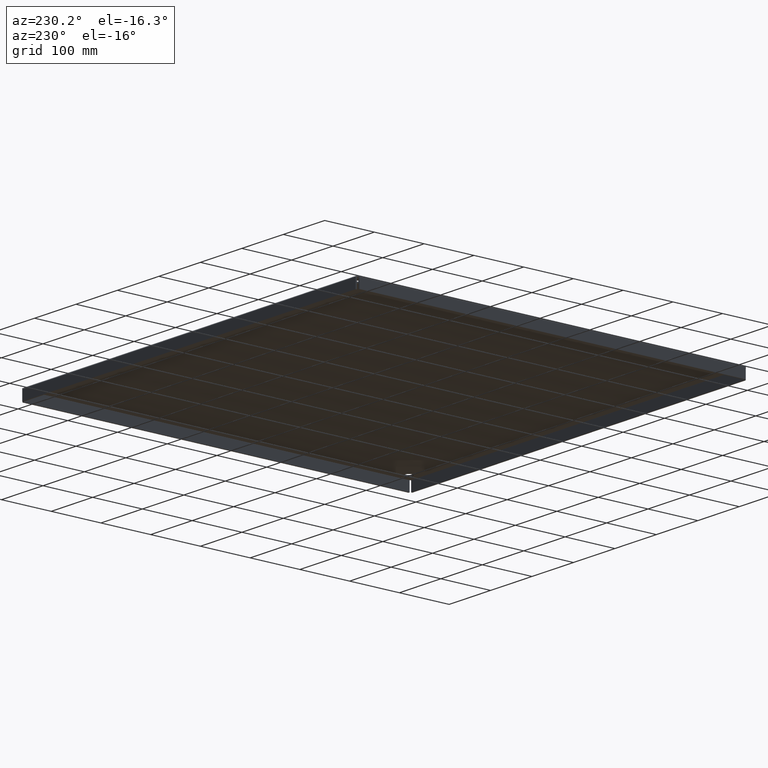
[diagram: clean part render]
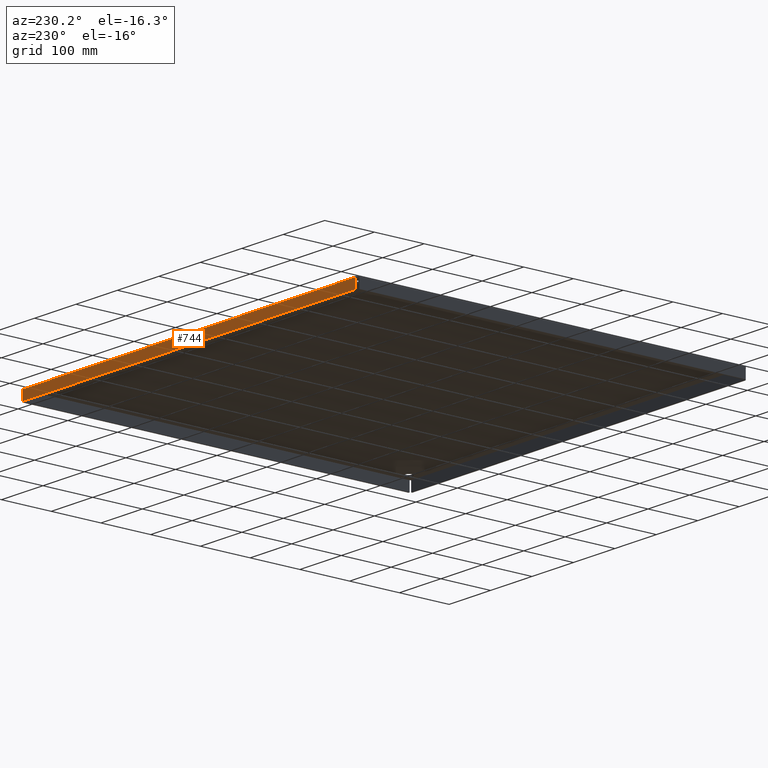
[diagram: same view with one face highlighted and labeled with its STEP entity id]
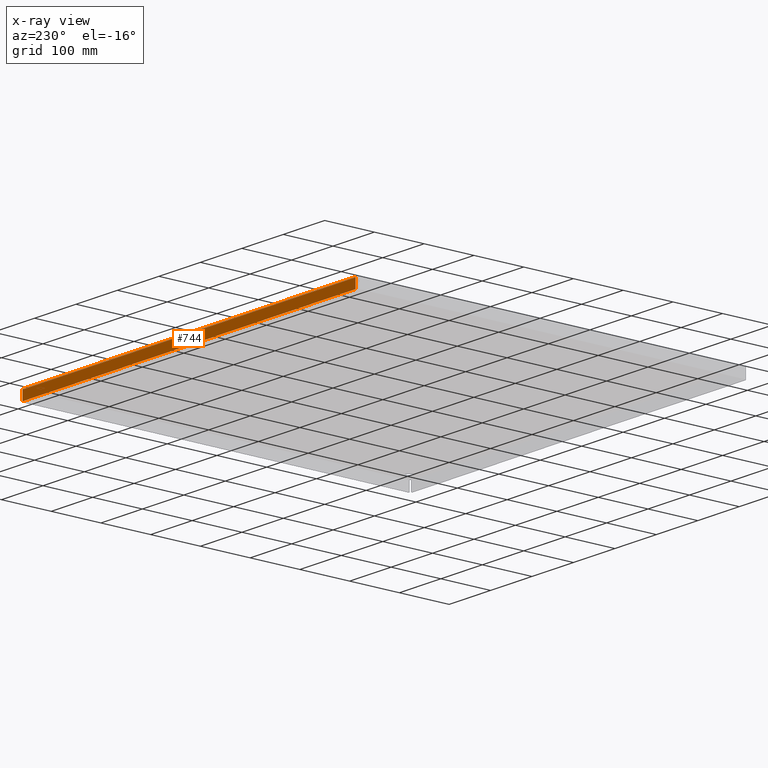
[diagram: x-ray of the same camera — body ghosted, the highlighted face saturated]
A machine part, auxiliary view. The second image highlights one B-rep face of the part: STEP entity #744.
The next image is the same camera in x-ray: the body ghosted, the highlighted face saturated — about 0% of this face is hidden behind the body in this view.
In plain terms, the highlighted planar face has unit normal (-0, 1, 0).
Its self-contained STEP definition (entity closure, byte-faithful):
#487=CARTESIAN_POINT('',(0.160041260736222,30.879999999999988,-0.015599999999985));
#488=VERTEX_POINT('',#487);
#489=CARTESIAN_POINT('',(31.839958739263768,30.880000000000017,-0.01559999999999));
#490=VERTEX_POINT('',#489);
#491=CARTESIAN_POINT('',(0.160041260736223,30.879999999999992,-0.015599999999979));
#492=DIRECTION('',(1.0,0.0,0.0));
#493=VECTOR('',#492,31.679917478527543);
#494=LINE('',#491,#493);
#495=EDGE_CURVE('',#488,#490,#494,.T.);
#573=CARTESIAN_POINT('',(31.839958739263757,30.880000000000152,-0.781249999999994));
#574=VERTEX_POINT('',#573);
#575=CARTESIAN_POINT('',(31.839958739263757,30.880000000000152,-0.781249999999994));
#576=DIRECTION('',(0.0,-1.763248E-013,1.0));
#577=VECTOR('',#576,0.765649999999999);
#578=LINE('',#575,#577);
#579=EDGE_CURVE('',#574,#490,#578,.T.);
#697=CARTESIAN_POINT('',(0.160041260736227,30.880000000000116,-0.781249999999983));
#698=VERTEX_POINT('',#697);
#699=CARTESIAN_POINT('',(0.160041260736227,30.879999999999981,-0.015599999999985));
#700=DIRECTION('',(0.0,1.763248E-013,-1.0));
#701=VECTOR('',#700,0.765649999999999);
#702=LINE('',#699,#701);
#703=EDGE_CURVE('',#488,#698,#702,.T.);
#721=CARTESIAN_POINT('',(0.160041260736227,30.880000000000116,-0.781249999999983));
#722=DIRECTION('',(1.0,0.0,0.0));
#723=VECTOR('',#722,31.679917478527528);
#724=LINE('',#721,#723);
#725=EDGE_CURVE('',#698,#574,#724,.T.);
#733=CARTESIAN_POINT('',(15.999999999999993,30.880000000000063,-0.361770140794648));
#734=DIRECTION('',(-9.301345E-016,1.0,1.718801E-013));
#735=DIRECTION('',(1.0,0.0,0.0));
#736=AXIS2_PLACEMENT_3D('',#733,#734,#735);
#737=PLANE('',#736);
#738=ORIENTED_EDGE('',*,*,#495,.T.);
#739=ORIENTED_EDGE('',*,*,#579,.F.);
#740=ORIENTED_EDGE('',*,*,#725,.F.);
#741=ORIENTED_EDGE('',*,*,#703,.F.);
#742=EDGE_LOOP('',(#738,#739,#740,#741));
#743=FACE_OUTER_BOUND('',#742,.T.);
#744=ADVANCED_FACE('',(#743),#737,.T.);